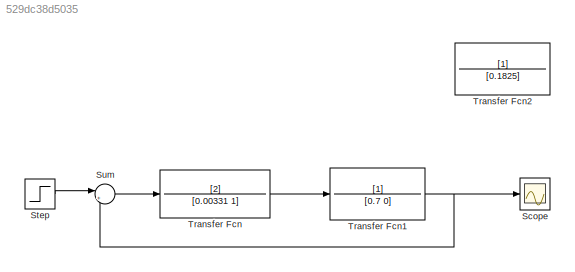
MODEL slx_529dc38d5035
KIND model
CONFIG AbsTol = auto
CONFIG FixedStep = 0.001
CONFIG MaxStep = auto
CONFIG MinStep = auto
CONFIG RelTol = 1e-3
CONFIG SampleTimeConstraint = Unconstrained
CONFIG Solver = ode3
CONFIG SolverMode = Auto
CONFIG SolverName = ode3
CONFIG StartTime = 0.0
CONFIG StopTime = 5
BLOCK [Scope] Scope
  Floating = off
  NumInputPorts = 1
  Ports = [1]
BLOCK [Step] Step
  SampleTime = 0
  Time = 0
BLOCK [Sum] Sum
  IconShape = round
  InputSameDT = off
  Inputs = |+-
  OutDataTypeStr = Inherit: Inherit via internal rule
  Ports = [2, 1]
  SaturateOnIntegerOverflow = off
BLOCK [TransferFcn] Transfer Fcn
  Denominator = [0.00331 1]
  Numerator = [2]
BLOCK [TransferFcn] Transfer Fcn1
  Denominator = [0.7 0]
BLOCK [TransferFcn] Transfer Fcn2
  Denominator = [0.1825]
LINE Step:1 -> Sum:1
LINE Sum:1 -> Transfer Fcn:1
NET Transfer Fcn1:1 -> Scope:1, Sum:2
LINE Transfer Fcn:1 -> Transfer Fcn1:1
note: NET lines group one-source signal fan-out (src -> all destinations, sorted); 1:1 wires keep LINE
